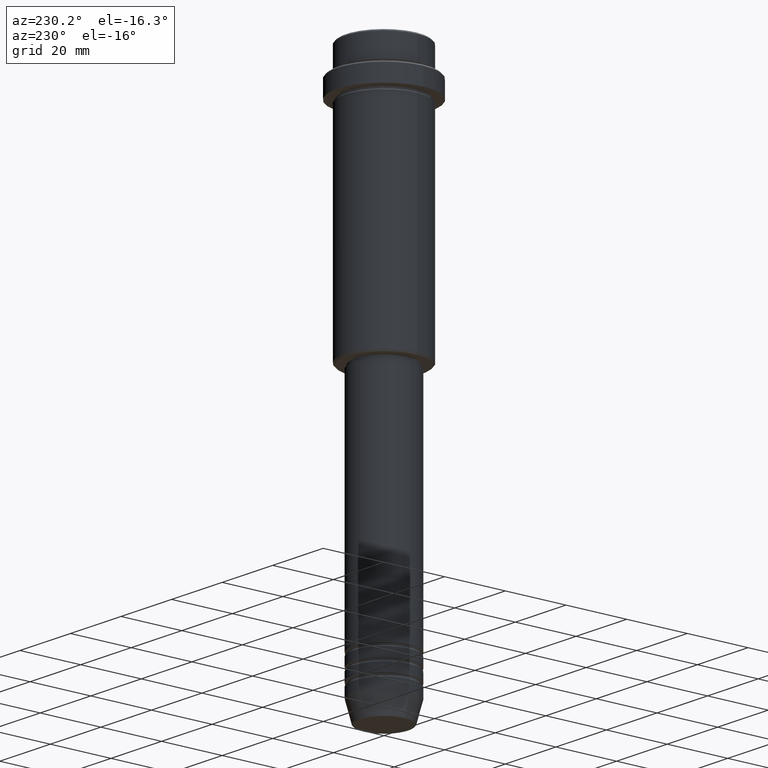
[diagram: clean part render]
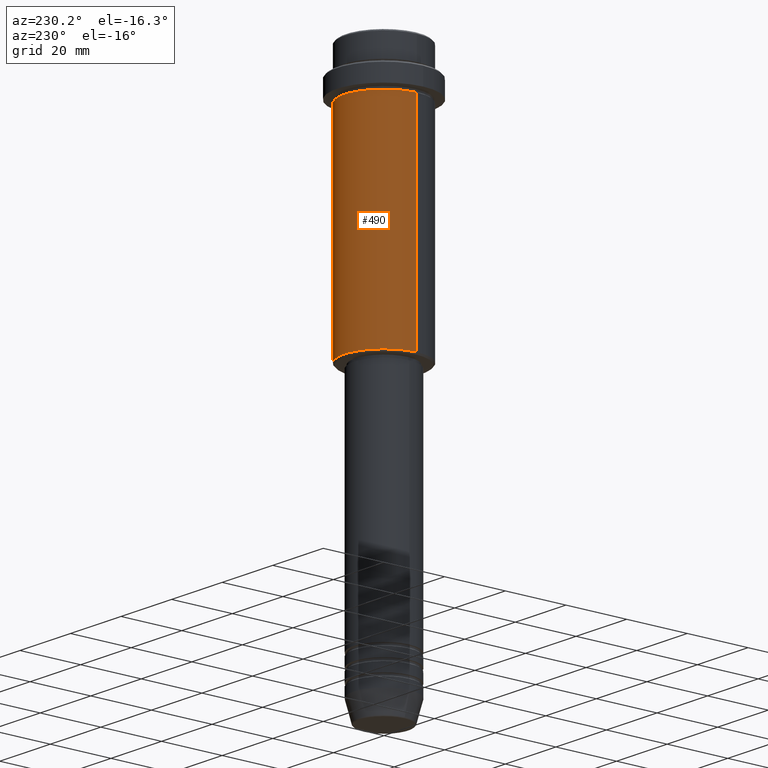
[diagram: same view with one face highlighted and labeled with its STEP entity id]
A machine part, auxiliary view. The second image highlights one B-rep face of the part: STEP entity #490.
In plain terms, the highlighted cylindrical surface (partial cylindrical patch) has radius 13 mm, axis along (-0, -0, 1).
Its self-contained STEP definition (entity closure, byte-faithful):
#3 = EDGE_CURVE ( 'NONE', #1209, #558, #1273, .T. ) ;
#10 = LINE ( 'NONE', #801, #342 ) ;
#29 = DIRECTION ( 'NONE',  ( 1.000000000000000000, 0.000000000000000000, 0.000000000000000000 ) ) ;
#68 = DIRECTION ( 'NONE',  ( -1.000000000000000000, 0.000000000000000000, 0.000000000000000000 ) ) ;
#96 = FACE_OUTER_BOUND ( 'NONE', #991, .T. ) ;
#254 = ORIENTED_EDGE ( 'NONE', *, *, #3, .F. ) ;
#260 = LINE ( 'NONE', #822, #894 ) ;
#273 = ORIENTED_EDGE ( 'NONE', *, *, #1341, .F. ) ;
#342 = VECTOR ( 'NONE', #559, 1000.000000000000000 ) ;
#351 = ORIENTED_EDGE ( 'NONE', *, *, #354, .T. ) ;
#354 = EDGE_CURVE ( 'NONE', #506, #558, #260, .T. ) ;
#373 = CARTESIAN_POINT ( 'NONE',  ( 13.00000000000000000, 0.000000000000000000, -84.50000000000000000 ) ) ;
#490 = ADVANCED_FACE ( 'NONE', ( #96 ), #1170, .T. ) ;
#506 = VERTEX_POINT ( 'NONE', #976 ) ;
#558 = VERTEX_POINT ( 'NONE', #666 ) ;
#559 = DIRECTION ( 'NONE',  ( -0.000000000000000000, -0.000000000000000000, 1.000000000000000000 ) ) ;
#607 = DIRECTION ( 'NONE',  ( -0.000000000000000000, -0.000000000000000000, 1.000000000000000000 ) ) ;
#624 = CARTESIAN_POINT ( 'NONE',  ( 0.000000000000000000, 0.000000000000000000, -84.50000000000000000 ) ) ;
#666 = CARTESIAN_POINT ( 'NONE',  ( -13.00000000000000000, 1.592040838891559095E-15, -16.00000000000000000 ) ) ;
#744 = AXIS2_PLACEMENT_3D ( 'NONE', #1334, #795, #29 ) ;
#770 = EDGE_CURVE ( 'NONE', #1014, #506, #1214, .T. ) ;
#795 = DIRECTION ( 'NONE',  ( -0.000000000000000000, -0.000000000000000000, 1.000000000000000000 ) ) ;
#801 = CARTESIAN_POINT ( 'NONE',  ( 13.00000000000000000, 0.000000000000000000, 0.000000000000000000 ) ) ;
#822 = CARTESIAN_POINT ( 'NONE',  ( -13.00000000000000000, 1.592040838891559095E-15, 0.000000000000000000 ) ) ;
#834 = DIRECTION ( 'NONE',  ( -0.000000000000000000, -0.000000000000000000, 1.000000000000000000 ) ) ;
#835 = CARTESIAN_POINT ( 'NONE',  ( 13.00000000000000000, 0.000000000000000000, -16.00000000000000000 ) ) ;
#894 = VECTOR ( 'NONE', #607, 1000.000000000000000 ) ;
#960 = CARTESIAN_POINT ( 'NONE',  ( 0.000000000000000000, 0.000000000000000000, 0.000000000000000000 ) ) ;
#968 = AXIS2_PLACEMENT_3D ( 'NONE', #960, #1384, #1176 ) ;
#976 = CARTESIAN_POINT ( 'NONE',  ( -13.00000000000000000, 1.592040838891559095E-15, -84.50000000000000000 ) ) ;
#986 = AXIS2_PLACEMENT_3D ( 'NONE', #624, #834, #68 ) ;
#991 = EDGE_LOOP ( 'NONE', ( #1084, #351, #254, #273 ) ) ;
#1014 = VERTEX_POINT ( 'NONE', #373 ) ;
#1084 = ORIENTED_EDGE ( 'NONE', *, *, #770, .T. ) ;
#1170 = CYLINDRICAL_SURFACE ( 'NONE', #968, 13.00000000000000000 ) ;
#1176 = DIRECTION ( 'NONE',  ( 1.000000000000000000, 0.000000000000000000, 0.000000000000000000 ) ) ;
#1209 = VERTEX_POINT ( 'NONE', #835 ) ;
#1214 = CIRCLE ( 'NONE', #986, 13.00000000000000000 ) ;
#1273 = CIRCLE ( 'NONE', #744, 13.00000000000000000 ) ;
#1334 = CARTESIAN_POINT ( 'NONE',  ( 0.000000000000000000, 0.000000000000000000, -16.00000000000000000 ) ) ;
#1341 = EDGE_CURVE ( 'NONE', #1014, #1209, #10, .T. ) ;
#1384 = DIRECTION ( 'NONE',  ( -0.000000000000000000, -0.000000000000000000, 1.000000000000000000 ) ) ;